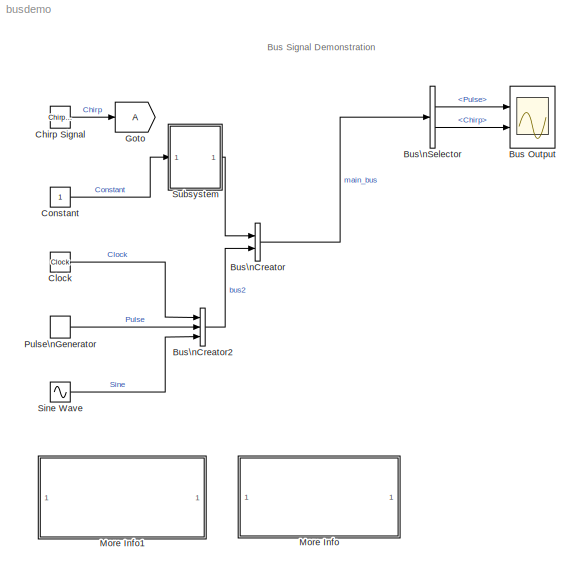
MODEL busdemo
KIND model
BLOCK [Scope] Bus Output
  DataFormat = Structure
  NumInputPorts = 2
  Ports = [2]
  StartFcn = open_system(gcbh)
  TimeRange = 10
  YMax = 3~5
  YMin = -3~-5
BLOCK [BusCreator] Bus\nCreator
  DialogController = Simulink.DDGSource_Bus
  DisplayOption = bar
  Inputs = 2
  Ports = [2, 1]
BLOCK [BusCreator] Bus\nCreator2
  DialogController = Simulink.DDGSource_Bus
  DisplayOption = bar
  Inputs = 3
  Ports = [3, 1]
BLOCK [BusSelector] Bus\nSelector
  DialogController = Simulink.DDGSource_Bus
  OutputSignals = bus2.Pulse,bus1.Chirp
  Ports = [1, 2]
BLOCK [Reference] Chirp Signal  REF=simulink/Sources/Chirp Signal
  Ports = [0, 1]
  ShowPortLabels = on
  SourceBlock = simulink/Sources/Chirp Signal
  SourceType = chirp
  T = 10
  VectorParams1D = on
  f1 = 0.1
  f2 = 5
BLOCK [Clock] Clock
  Decimation = 10
BLOCK [Constant] Constant
BLOCK [Goto] Goto
  DialogController = Simulink.DDGSource
  GotoTag = A
  TagVisibility = global
BLOCK [SubSystem] More Info
  MaskDisplay = disp('Double click here \\nfor a step-by-step\\ntutorial on this model.')
  MaskIconFrame = on
  MaskIconOpaque = on
  MaskIconRotate = none
  MaskIconUnits = autoscale
  MinAlgLoopOccurrences = off
  OpenFcn = busdemoscript
  Ports = []
  PropExecContextAcrossSSBoundary = on
  RTWSystemCode = Auto
  TreatAsAtomicUnit = off
BLOCK [SubSystem] More Info1
  MaskDisplay = disp('Double click\\nhere for general\\nSimulink Help')
  MaskIconFrame = on
  MaskIconOpaque = on
  MaskIconRotate = none
  MaskIconUnits = autoscale
  MinAlgLoopOccurrences = off
  OpenFcn = simcad(bdroot);
  Ports = []
  PropExecContextAcrossSSBoundary = on
  RTWSystemCode = Auto
  TreatAsAtomicUnit = off
BLOCK [DiscretePulseGenerator] Pulse\nGenerator
  Ports = [0, 1]
BLOCK [Sin] Sine Wave
  Ports = [0, 1]
  SampleTime = 0
  SineType = Time based
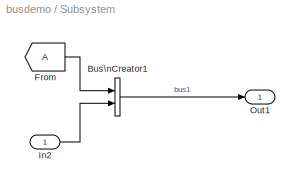
BLOCK [SubSystem] Subsystem
  MinAlgLoopOccurrences = off
  Ports = [1, 1]
  PropExecContextAcrossSSBoundary = on
  RTWSystemCode = Auto
  TreatAsAtomicUnit = off
BLOCK [BusCreator] Subsystem/Bus\nCreator1
  DialogController = Simulink.DDGSource_Bus
  DisplayOption = bar
  Inputs = 2
  Ports = [2, 1]
BLOCK [From] Subsystem/From
  DialogController = Simulink.DDGSource
  GotoTag = A
BLOCK [Inport] Subsystem/In2
  IconDisplay = Port number
  LatchInput = off
  Port = 1
BLOCK [Outport] Subsystem/Out1
  IconDisplay = Port number
ANNOTATION (root): Bus Signal Demonstration
ANNOTATION More Info: Bus Block Demonstration
ANNOTATION More Info: This demonstration shows how signals may be grouped and ungrouped while\nretaining their names. In this demonstration, 5 signals are created and labelled\nappropriately. These signals are then mux'd together to create a bus of signals.\nThis bus of signals is then fed into the Bus Selector block. Inside of the Bus \nSelector block, the Pulse and Chirp signals are chosen to be output from the \nori...<+125ch>
LINE Bus\nCreator2:1 -> Bus\nCreator:2
LINE Bus\nCreator:1 -> Bus\nSelector:1
LINE Bus\nSelector:1 -> Bus Output:1
LINE Bus\nSelector:2 -> Bus Output:2
LINE Chirp Signal:1 -> Goto:1
LINE Clock:1 -> Bus\nCreator2:1
LINE Constant:1 -> Subsystem:1
LINE Pulse\nGenerator:1 -> Bus\nCreator2:2
LINE Sine Wave:1 -> Bus\nCreator2:3
LINE Subsystem/Bus\nCreator1:1 -> Subsystem/Out1:1
LINE Subsystem/From:1 -> Subsystem/Bus\nCreator1:1
LINE Subsystem/In2:1 -> Subsystem/Bus\nCreator1:2
LINE Subsystem:1 -> Bus\nCreator:1
